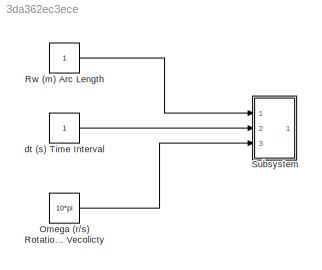
MODEL slx_3da362ec3ece
KIND model
BLOCK [Constant] Omega (r//s) Rotational Vecolicty 
  Value = 10*pi
BLOCK [Constant] Rw (m) Arc Length
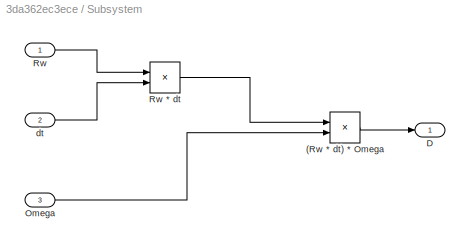
BLOCK [SubSystem] Subsystem
  FunctionWithSeparateData = off
  MaskHideContents = off
  MinAlgLoopOccurrences = off
  Opaque = off
  Ports = [3, 1]
  PropExecContextOutsideSubsystem = off
  RTWSystemCode = Auto
  RequestExecContextInheritance = off
BLOCK [Product] Subsystem/(Rw * dt) * Omega
  InputSameDT = off
  OutDataTypeStr = Inherit: Inherit via internal rule
  Ports = [2, 1]
  RndMeth = Floor
  SaturateOnIntegerOverflow = off
BLOCK [Outport] Subsystem/D
  IconDisplay = Port number
BLOCK [Inport] Subsystem/Omega
  IconDisplay = Port number
  Port = 3
BLOCK [Inport] Subsystem/Rw
  IconDisplay = Port number
BLOCK [Product] Subsystem/Rw * dt
  InputSameDT = off
  OutDataTypeStr = Inherit: Inherit via internal rule
  Ports = [2, 1]
  RndMeth = Floor
  SaturateOnIntegerOverflow = off
BLOCK [Inport] Subsystem/dt
  IconDisplay = Port number
  Port = 2
BLOCK [Constant] dt (s) Time Interval
LINE Omega (r//s) Rotational Vecolicty :1 -> Subsystem:3
LINE Rw (m) Arc Length:1 -> Subsystem:1
LINE Subsystem/(Rw * dt) * Omega:1 -> Subsystem/D:1
LINE Subsystem/Omega:1 -> Subsystem/(Rw * dt) * Omega:2
LINE Subsystem/Rw * dt:1 -> Subsystem/(Rw * dt) * Omega:1
LINE Subsystem/Rw:1 -> Subsystem/Rw * dt:1
LINE Subsystem/dt:1 -> Subsystem/Rw * dt:2
LINE dt (s) Time Interval:1 -> Subsystem:2
